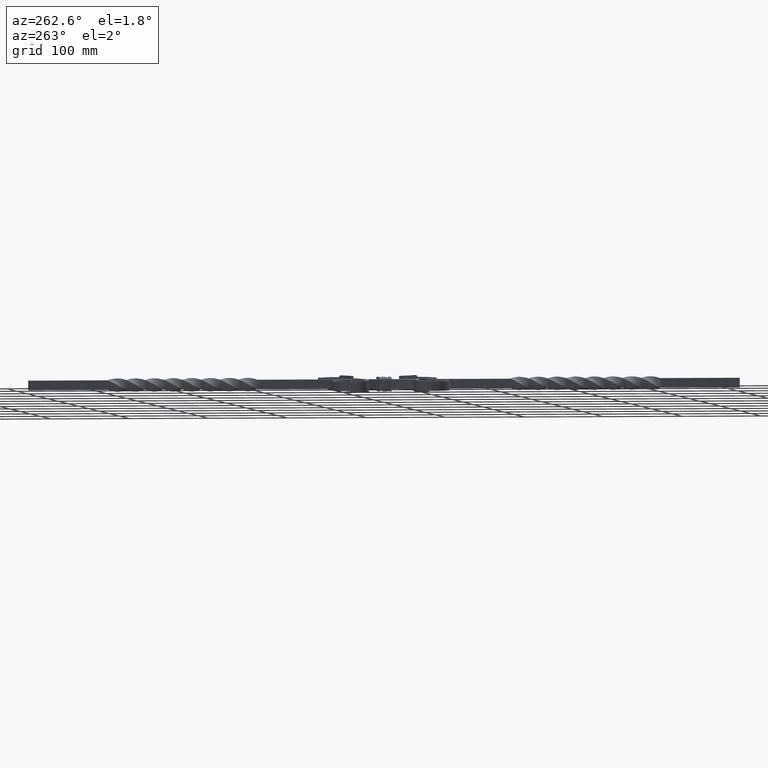
[diagram: clean part render]
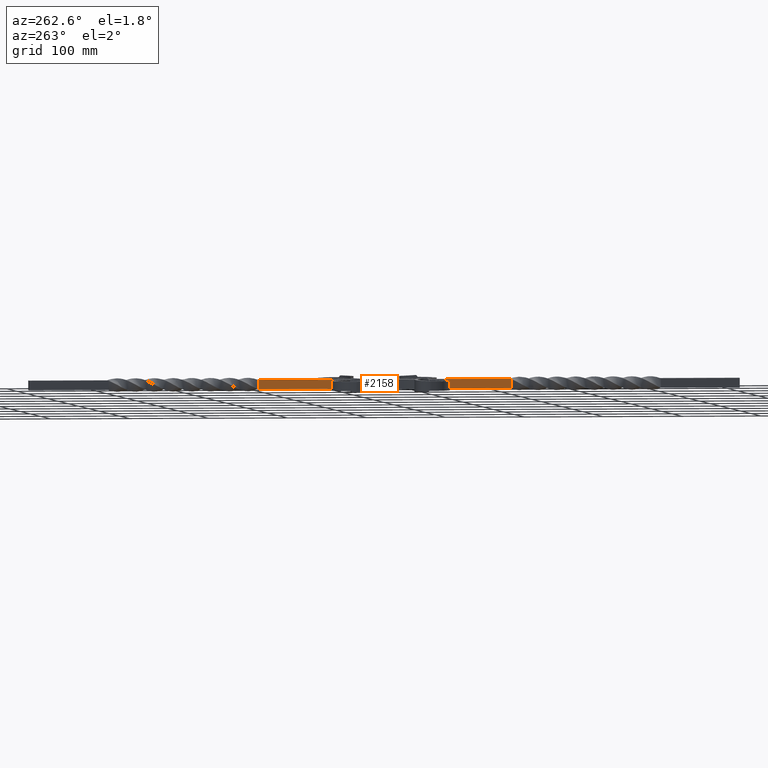
[diagram: same view with one face highlighted and labeled with its STEP entity id]
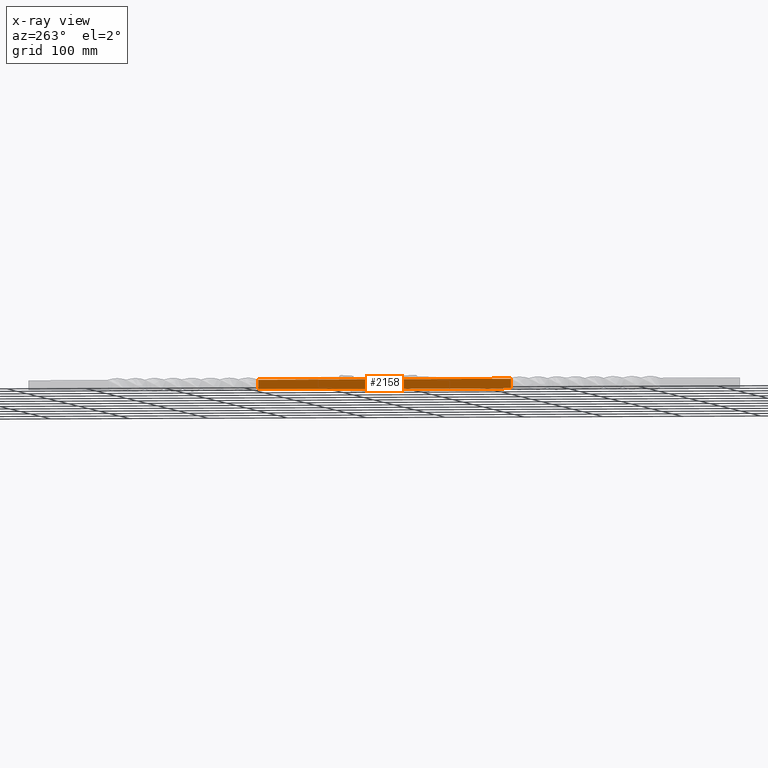
[diagram: x-ray of the same camera — body ghosted, the highlighted face saturated]
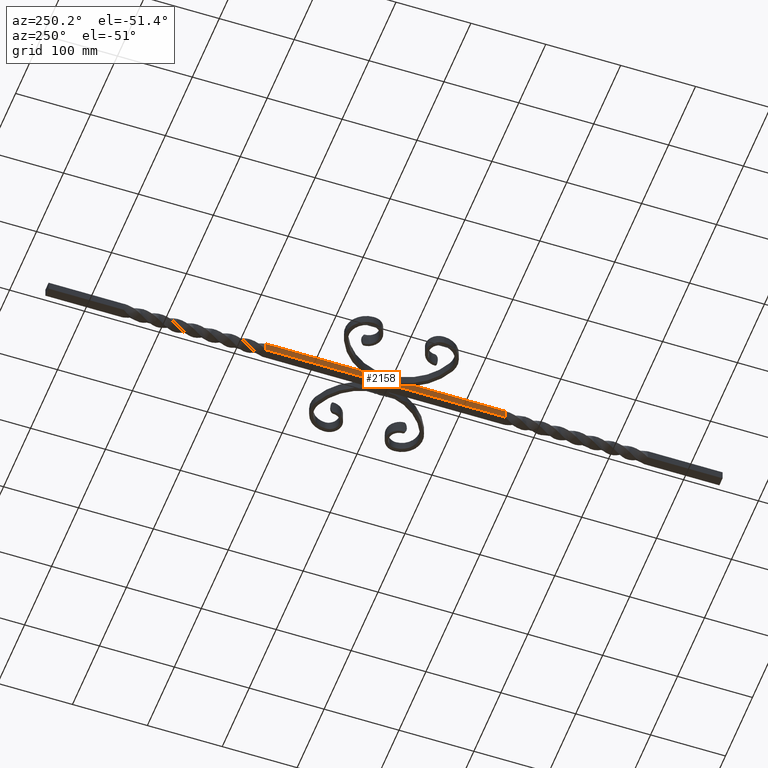
[diagram: same view with one face highlighted and labeled with its STEP entity id]
A machine part, auxiliary view. The second image highlights one B-rep face of the part: STEP entity #2158.
The next image is the same camera in x-ray: the body ghosted, the highlighted face saturated — about 0% of this face is hidden behind the body in this view.
A second angle (auxiliary view) of the same face is appended — the face is thin or edge-on in the first view.
In plain terms, the highlighted planar face has unit normal (1, 0, -0).
Its self-contained STEP definition (entity closure, byte-faithful):
#265 = VERTEX_POINT ( 'NONE', #1919 ) ;
#1314 = VERTEX_POINT ( 'NONE', #3127 ) ;
#1432 = ORIENTED_EDGE ( 'NONE', *, *, #4607, .T. ) ;
#1555 = DIRECTION ( 'NONE',  ( -6.752319338878697703E-11, 1.131452293903462314E-20, -1.000000000000000000 ) ) ;
#1919 = CARTESIAN_POINT ( 'NONE',  ( -6.000000004341382365, -159.9999999177966572, -5.999999992773748403 ) ) ;
#2033 = VERTEX_POINT ( 'NONE', #8832 ) ;
#2158 = ADVANCED_FACE ( 'NONE', ( #5245 ), #13312, .F. ) ;
#2421 = ORIENTED_EDGE ( 'NONE', *, *, #12427, .F. ) ;
#2568 = CARTESIAN_POINT ( 'NONE',  ( -5.999999999594869848, -159.9999997603008239, 6.000000034778147473 ) ) ;
#2581 = EDGE_CURVE ( 'NONE', #2033, #1314, #6145, .T. ) ;
#2833 = CARTESIAN_POINT ( 'NONE',  ( -6.000000036979178830, 160.0000000719577145, -5.999999978192126271 ) ) ;
#3127 = CARTESIAN_POINT ( 'NONE',  ( -5.999999999594869848, -159.9999997603008239, 6.000000034778147473 ) ) ;
#4607 = EDGE_CURVE ( 'NONE', #13359, #265, #9376, .T. ) ;
#4831 = VECTOR ( 'NONE', #12789, 1000.000000000000000 ) ;
#5245 = FACE_OUTER_BOUND ( 'NONE', #14006, .T. ) ;
#5470 = CARTESIAN_POINT ( 'NONE',  ( -6.000000000405138145, 160.0000000020422988, -5.999999999594862743 ) ) ;
#6145 = B_SPLINE_CURVE_WITH_KNOTS ( 'NONE', 3,
 ( #14469, #9150, #10511, #2568 ),
 .UNSPECIFIED., .F., .F.,
 ( 4, 4 ),
 ( 0.000000000000000000, 1.000000000000000000 ),
 .UNSPECIFIED. ) ;
#6683 = ORIENTED_EDGE ( 'NONE', *, *, #15396, .F. ) ;
#7392 = CARTESIAN_POINT ( 'NONE',  ( -6.000000000405138145, -159.9999997499998301, -5.999999999594862743 ) ) ;
#8087 = DIRECTION ( 'NONE',  ( 6.752319338878697703E-11, -1.131452293903462314E-20, 1.000000000000000000 ) ) ;
#8116 = CARTESIAN_POINT ( 'NONE',  ( -6.000000000405138145, 450.0000000000000000, -5.999999999594862743 ) ) ;
#8832 = CARTESIAN_POINT ( 'NONE',  ( -5.999999999594855637, 160.0000000018138167, 6.000000000405143474 ) ) ;
#9150 = CARTESIAN_POINT ( 'NONE',  ( -5.999999999594860078, 53.33333341800718586, 6.000000000405144363 ) ) ;
#9376 = B_SPLINE_CURVE_WITH_KNOTS ( 'NONE', 3,
 ( #2833, #13449, #9409, #16024 ),
 .UNSPECIFIED., .F., .F.,
 ( 4, 4 ),
 ( 0.000000000000000000, 1.000000000000000000 ),
 .UNSPECIFIED. ) ;
#9409 = CARTESIAN_POINT ( 'NONE',  ( -6.000000000405138145, -53.33333331513853182, -5.999999990500026747 ) ) ;
#9416 = LINE ( 'NONE', #7392, #4831 ) ;
#10511 = CARTESIAN_POINT ( 'NONE',  ( -5.999999999594860078, -53.33333316599635765, 6.000000000405141698 ) ) ;
#12094 = VECTOR ( 'NONE', #8087, 1000.000000000000000 ) ;
#12427 = EDGE_CURVE ( 'NONE', #1314, #265, #9416, .T. ) ;
#12789 = DIRECTION ( 'NONE',  ( -6.752319338878697703E-11, 1.131452293903462314E-20, -1.000000000000000000 ) ) ;
#13312 = PLANE ( 'NONE',  #16700 ) ;
#13359 = VERTEX_POINT ( 'NONE', #14451 ) ;
#13449 = CARTESIAN_POINT ( 'NONE',  ( -6.000000000405138145, 53.33333334345188348, -5.999999995047443413 ) ) ;
#14006 = EDGE_LOOP ( 'NONE', ( #1432, #2421, #14897, #6683 ) ) ;
#14451 = CARTESIAN_POINT ( 'NONE',  ( -6.000000036979178830, 160.0000000719577145, -5.999999978192126271 ) ) ;
#14469 = CARTESIAN_POINT ( 'NONE',  ( -5.999999999594855637, 160.0000000018138167, 6.000000000405143474 ) ) ;
#14598 = LINE ( 'NONE', #5470, #12094 ) ;
#14897 = ORIENTED_EDGE ( 'NONE', *, *, #2581, .F. ) ;
#15396 = EDGE_CURVE ( 'NONE', #13359, #2033, #14598, .T. ) ;
#16024 = CARTESIAN_POINT ( 'NONE',  ( -6.000000004341382365, -159.9999999177966572, -5.999999992773748403 ) ) ;
#16129 = DIRECTION ( 'NONE',  ( 1.000000000000000000, 1.777588897360135824E-22, -6.752319338878697703E-11 ) ) ;
#16700 = AXIS2_PLACEMENT_3D ( 'NONE', #8116, #16129, #1555 ) ;